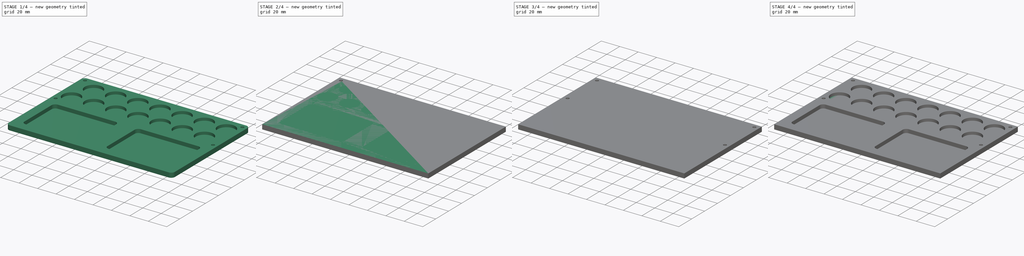
[diagram: build sequence overview — one tinted view per stage of 4, left to right]
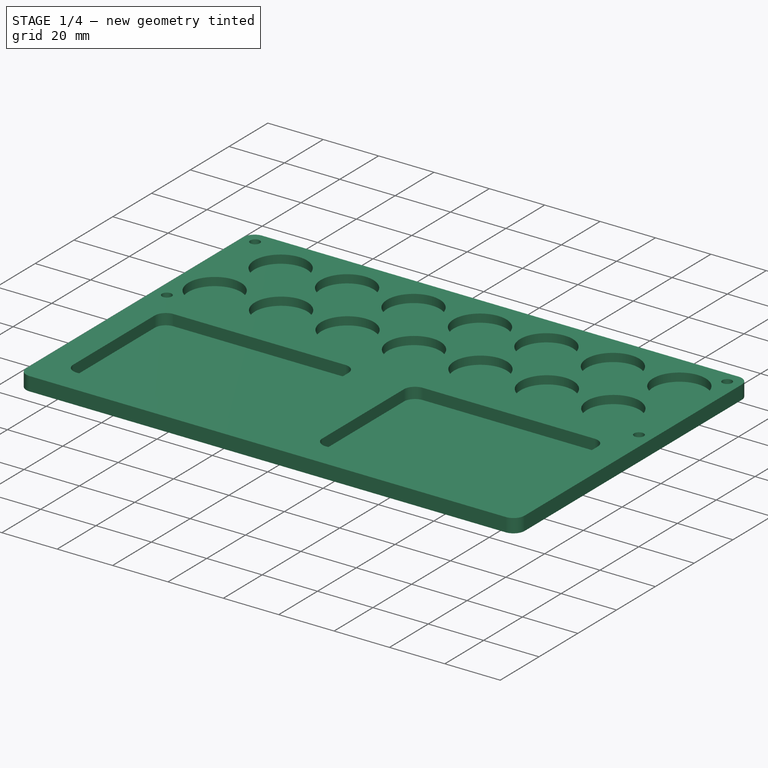
[diagram: stage 1 of 4 — iso view after this stage's code; geometry added in this stage tinted green]
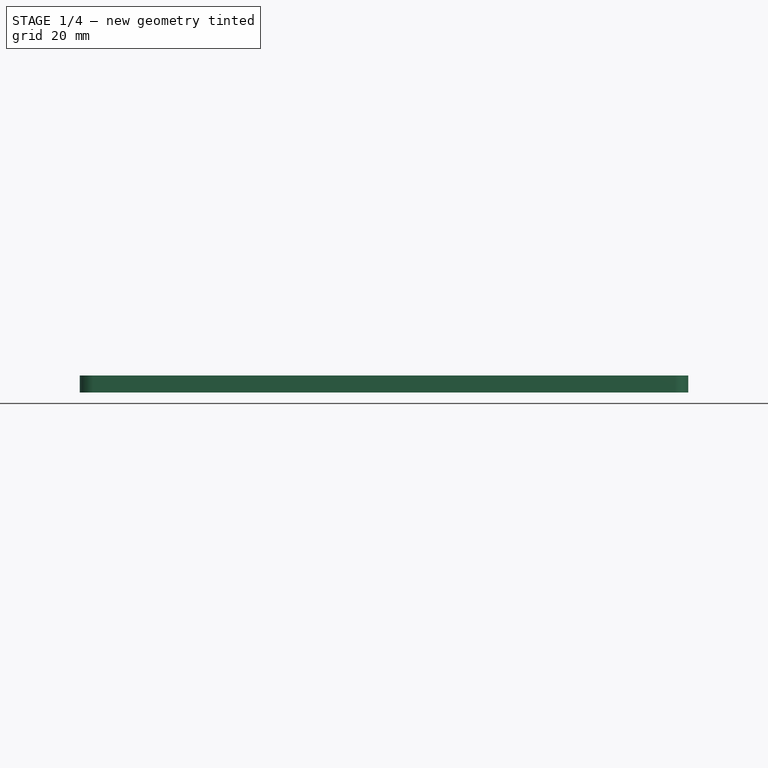
[diagram: stage 1 of 4 — front view after this stage's code; geometry added in this stage tinted green]
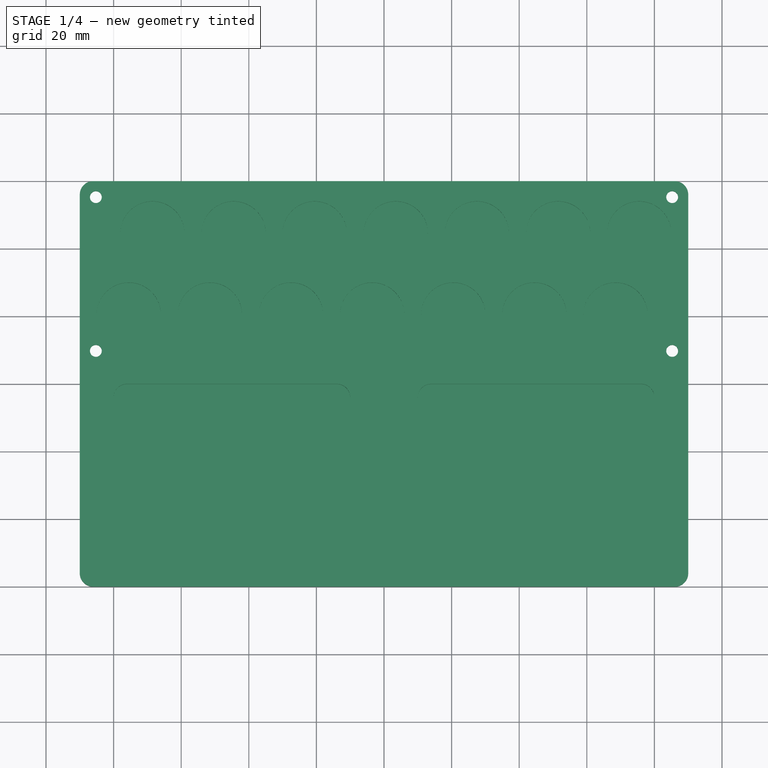
[diagram: stage 1 of 4 — top view after this stage's code; geometry added in this stage tinted green]
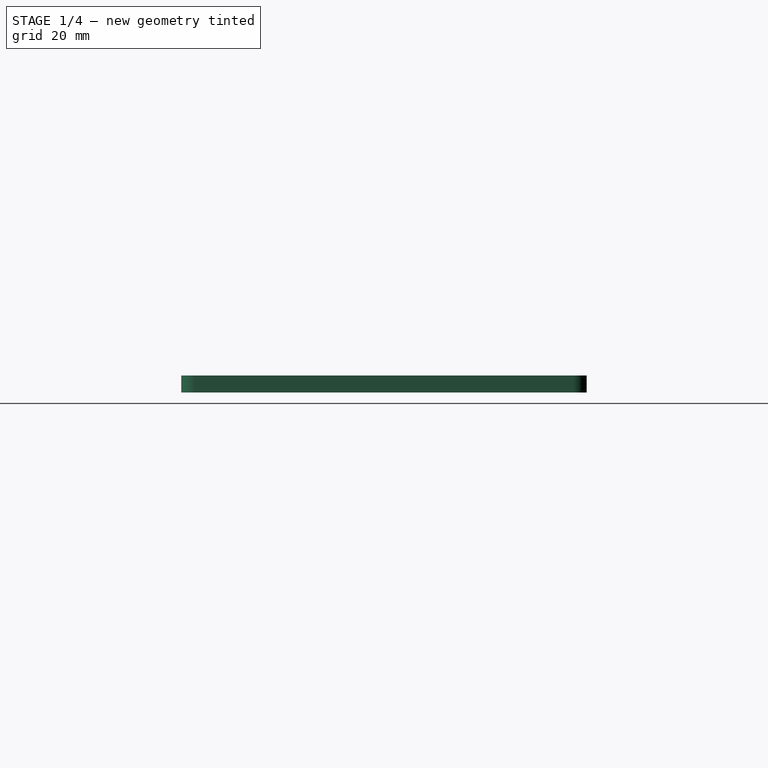
[diagram: stage 1 of 4 — right view after this stage's code; geometry added in this stage tinted green]
FCSTD DOCUMENT  (FreeCAD 0.17R13519 (Git))
Label: CNC-1
License: All rights reserved
LicenseURL: http://en.wikipedia.org/wiki/All_rights_reserved
objects: Sketcher::SketchObject×6, PartDesign::Pocket×4, PartDesign::Mirrored×3, Part::Feature×3, Part::Fillet×3, PartDesign::LinearPattern×2, PartDesign::MultiTransform×2, PartDesign::Pad×1, PartDesign::Body×1, Part::Fuse×1
note: 31 computed .brp shape members not serialized (recipe doc carries the construction recipe); baked Part::Feature solids carry a one-line shape summary decoded from their .brp

FEATURE [Part::Feature] Fusion001
  shape: bbox 180 x 120 x 5 mm, 56 faces (baked)
FEATURE [Part::Fillet] Fillet
  Base = -> Fusion001
  Edges = 4 edges r=4: [Edge1,Edge2,Edge101,Edge102]
FEATURE [Part::Fillet] Fillet001
  Base = -> Fillet
  Edges = 2 edges r=4: [Edge63,Edge65]
FEATURE [Part::Fillet] Fillet002
  Base = -> Fillet001
  Edges = 6 edges r=4: [Edge44,Edge46,Edge65,Edge67,Edge68,Edge70]
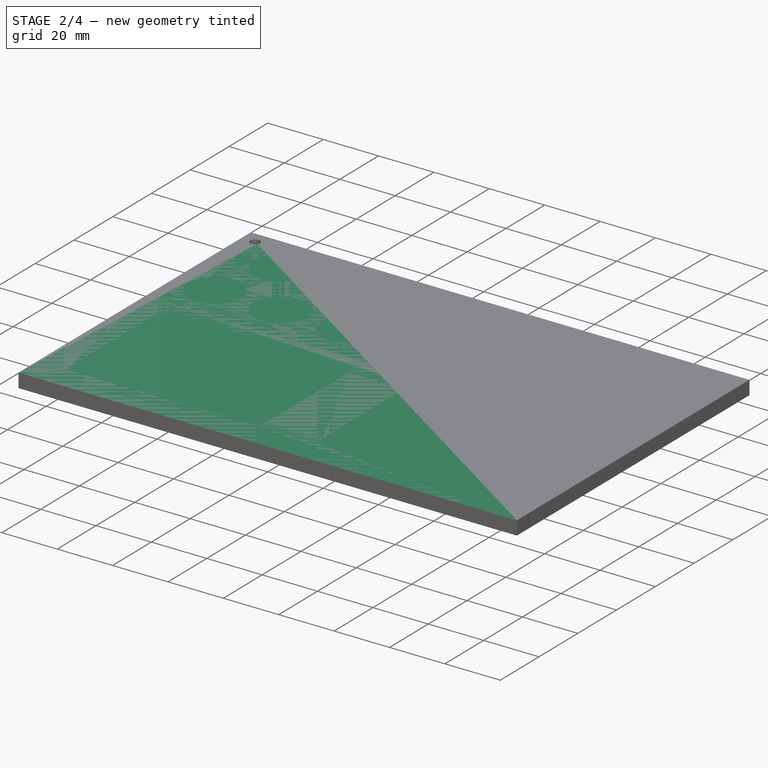
[diagram: stage 2 of 4 — iso view after this stage's code; geometry added in this stage tinted green]
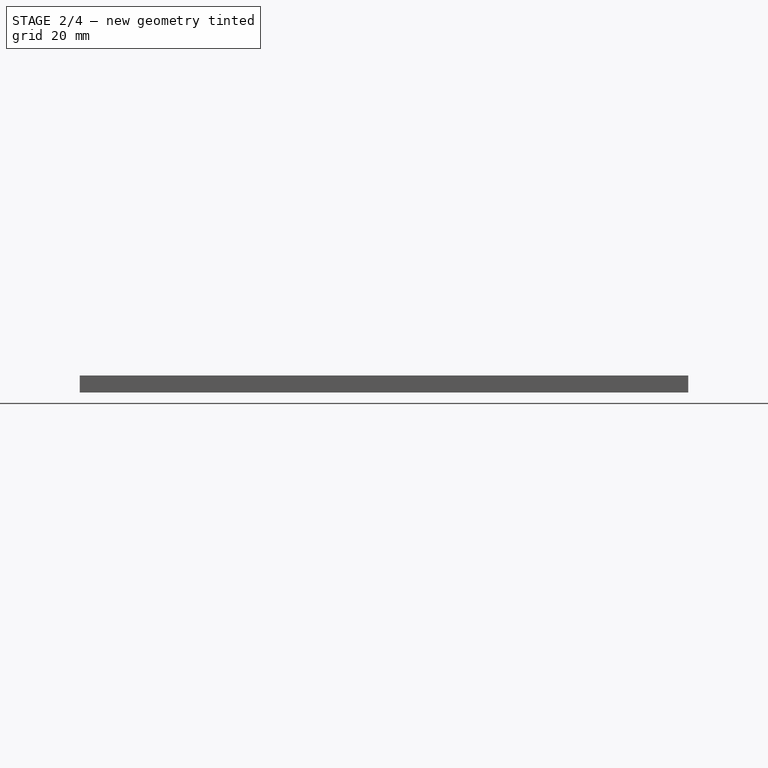
[diagram: stage 2 of 4 — front view after this stage's code; geometry added in this stage tinted green]
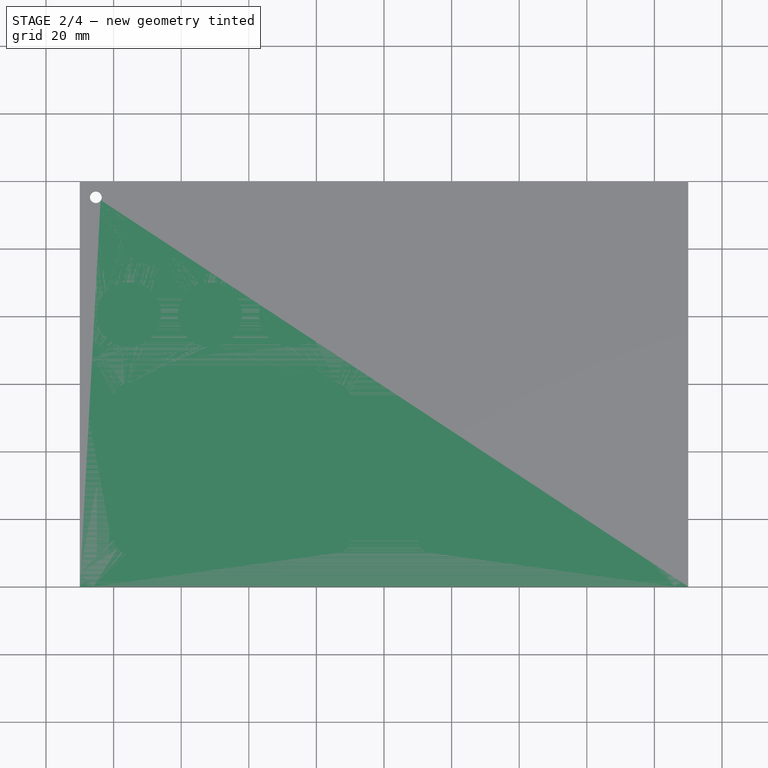
[diagram: stage 2 of 4 — top view after this stage's code; geometry added in this stage tinted green]
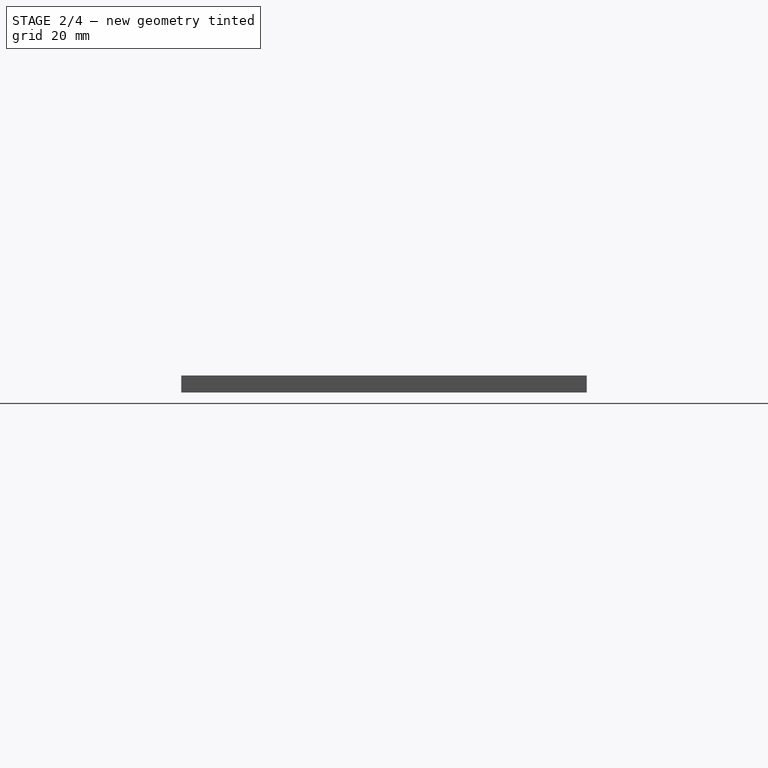
[diagram: stage 2 of 4 — right view after this stage's code; geometry added in this stage tinted green]
FEATURE [Sketcher::SketchObject] Sketch
  MapMode = 5
  Support = -> [XY_Plane]
  sketch-geometry (4):
    g0: LineSegment StartX=-90 StartY=60 StartZ=0 EndX=90 EndY=60 EndZ=0
    g1: LineSegment StartX=90 StartY=60 StartZ=0 EndX=90 EndY=-60 EndZ=0
    g2: LineSegment StartX=90 StartY=-60 StartZ=0 EndX=-90 EndY=-60 EndZ=0
    g3: LineSegment StartX=-90 StartY=-60 StartZ=0 EndX=-90 EndY=60 EndZ=0
  constraints (12):
    c: Coincident(g0,g1)
    c: Coincident(g1,g2)
    c: Coincident(g2,g3)
    c: Coincident(g3,g0)
    c: Horizontal(g0)
    c: Horizontal(g2)
    c: Vertical(g1)
    c: Vertical(g3)
    c: DistanceX(g0,g0) = 180
    c: DistanceY(g3,g3) = 120
    c: Distance(g-1,g0) = 60
    c: Distance(g-1,g3) = 90
FEATURE [PartDesign::Pad] Pad
  Length = 5
  Length2 = 100
  Profile = -> Sketch
  Type = 0
FEATURE [Sketcher::SketchObject] Sketch001
  ExternalGeometry = -> [Pad]
  MapMode = 5
  Placement = pos=(0,0,5) rot=(0,0,1;0rad)
  Support = -> [Pad]
  sketch-geometry (1):
    g0: Circle CenterX=-85.25 CenterY=55.25 CenterZ=0 NormalX=0 NormalY=0 NormalZ=1 AngleXU=0 Radius=1.75
  constraints (3):
    c: Radius(g0) = 1.75
    c: Distance(g0,g-3) = 4.75
    c: Distance(g0,g-4) = 4.75
FEATURE [PartDesign::Pocket] Pocket
  BaseFeature = -> Pad
  Length = 5
  Length2 = 100
  Profile = -> Sketch001
  Type = 1
FEATURE [PartDesign::Body] Body
  Group = -> [Sketch,Pad,Sketch001,Pocket,MultiTransform,Mirrored,LinearPattern,Sketch002,Sketch003,Pocket001,MultiTransform001,Mirrored001,LinearPattern001,Sketch004,Pocket002,Sketch005,Pocket003,Mirrored002]
  Origin = -> Origin
  Tip = -> Mirrored002
FEATURE [Part::Feature] Mirrored002001  label="Mirrored003"
  shape: bbox 180 x 120 x 5 mm, 22 faces (baked)
FEATURE [Part::Fuse] Fusion
  Base = -> LinearPattern001001
  Tool = -> Mirrored002001
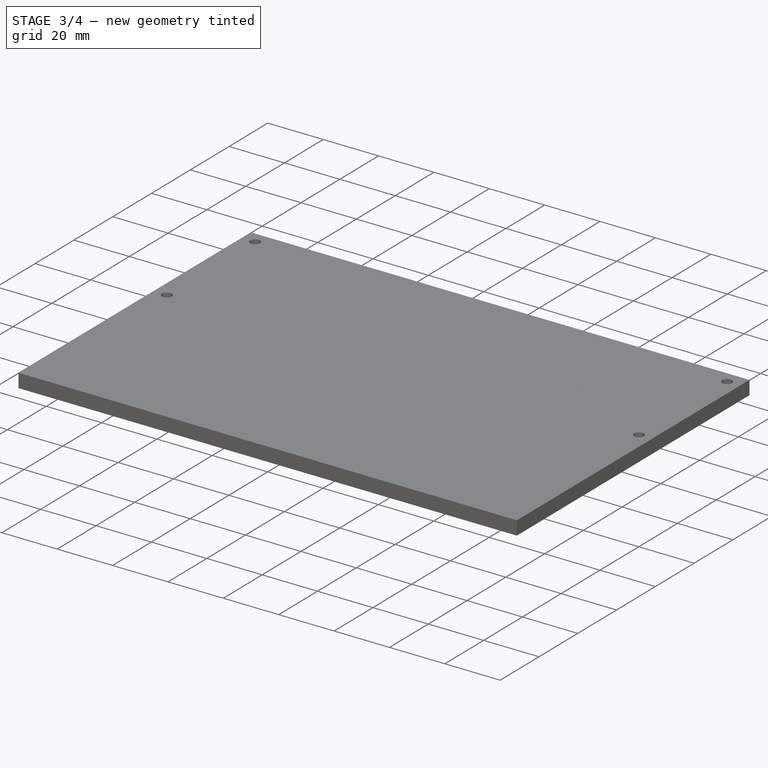
[diagram: stage 3 of 4 — iso view after this stage's code; geometry added in this stage tinted green]
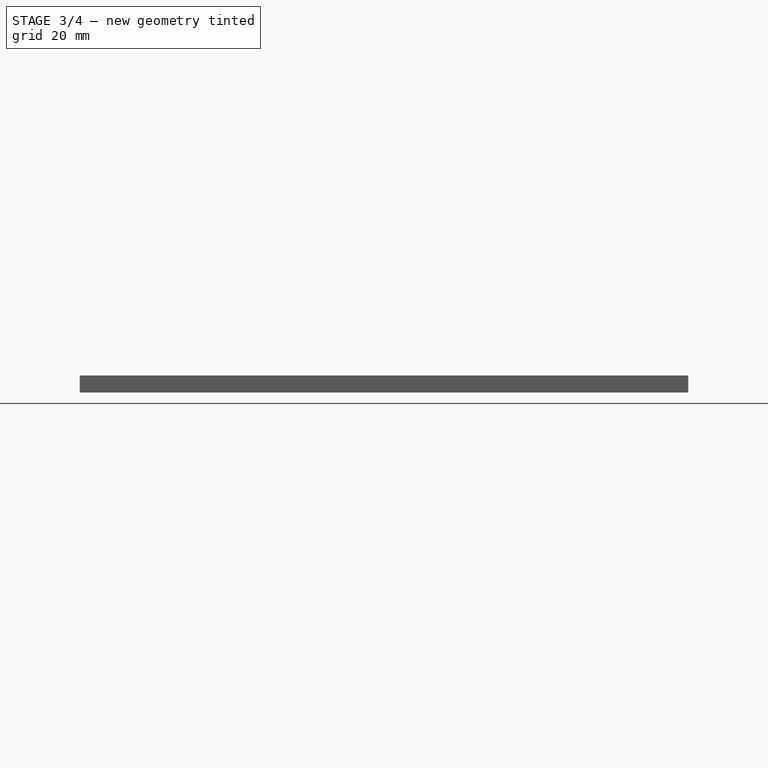
[diagram: stage 3 of 4 — front view after this stage's code; geometry added in this stage tinted green]
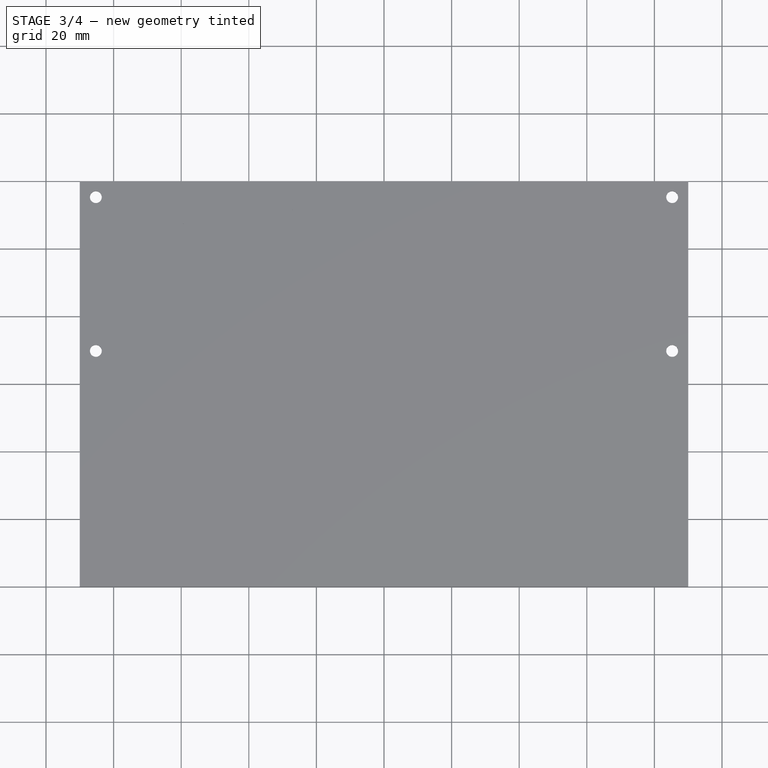
[diagram: stage 3 of 4 — top view after this stage's code; geometry added in this stage tinted green]
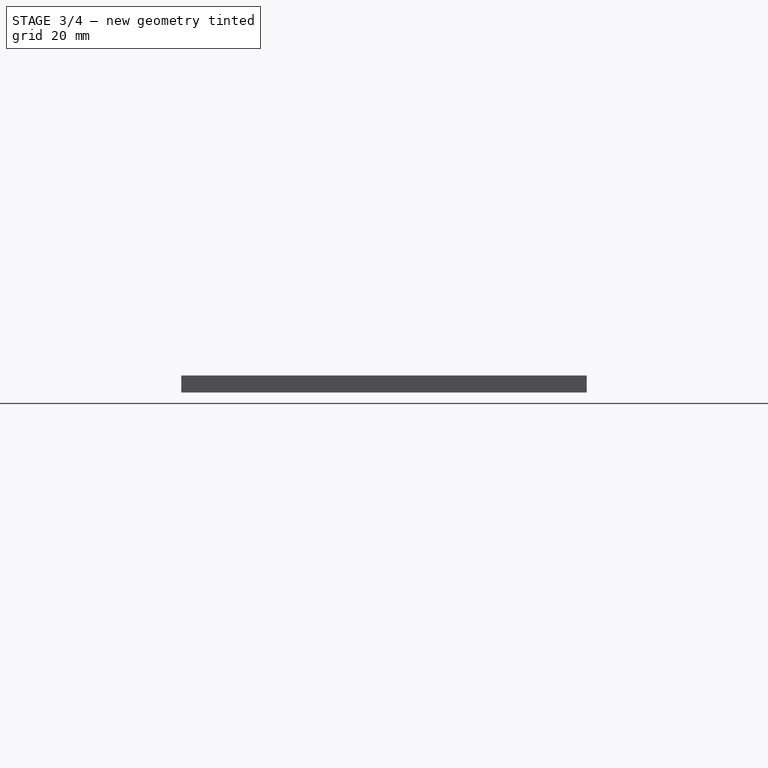
[diagram: stage 3 of 4 — right view after this stage's code; geometry added in this stage tinted green]
FEATURE [PartDesign::Mirrored] Mirrored
  MirrorPlane = -> YZ_Plane
FEATURE [PartDesign::LinearPattern] LinearPattern
  Direction = -> Y_Axis
  Length = 45.5
  Occurrences = 2
  Reversed = true
FEATURE [PartDesign::MultiTransform] MultiTransform
  BaseFeature = -> Pocket
  Originals = -> [Pocket]
  Transformations = -> [Mirrored,LinearPattern]
FEATURE [Sketcher::SketchObject] Sketch002
  MapMode = 5
  Placement = pos=(0,0,5) rot=(0,0,1;0rad)
  Support = -> [MultiTransform]
FEATURE [Sketcher::SketchObject] Sketch003
  ExternalGeometry = -> [MultiTransform]
  MapMode = 5
  Placement = pos=(0,0,0) rot=(1,0,0;3.14159rad)
  Support = -> [MultiTransform]
  sketch-geometry (1):
    g0: Circle CenterX=-85.25 CenterY=-55.25 CenterZ=0 NormalX=0 NormalY=0 NormalZ=1 AngleXU=0 Radius=3
  constraints (2):
    c: Radius(g0) = 3
    c: Coincident(g0,g-3)
FEATURE [PartDesign::Pocket] Pocket001
  BaseFeature = -> MultiTransform
  Length = 4
  Length2 = 100
  Profile = -> Sketch003
  Type = 0
FEATURE [PartDesign::Mirrored] Mirrored001
  MirrorPlane = -> Sketch003 [V_Axis]
FEATURE [PartDesign::LinearPattern] LinearPattern001
  Direction = -> Y_Axis
  Length = 45.5
  Occurrences = 2
  Reversed = true
FEATURE [PartDesign::MultiTransform] MultiTransform001
  BaseFeature = -> Pocket001
  Originals = -> [Pocket001]
  Transformations = -> [Mirrored001,LinearPattern001]
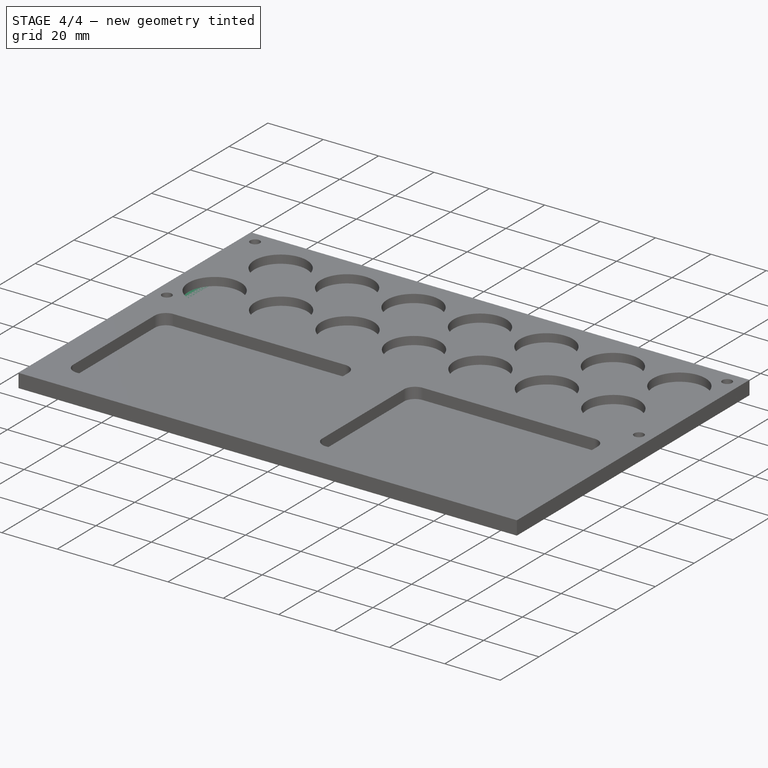
[diagram: stage 4 of 4 — iso view after this stage's code; geometry added in this stage tinted green]
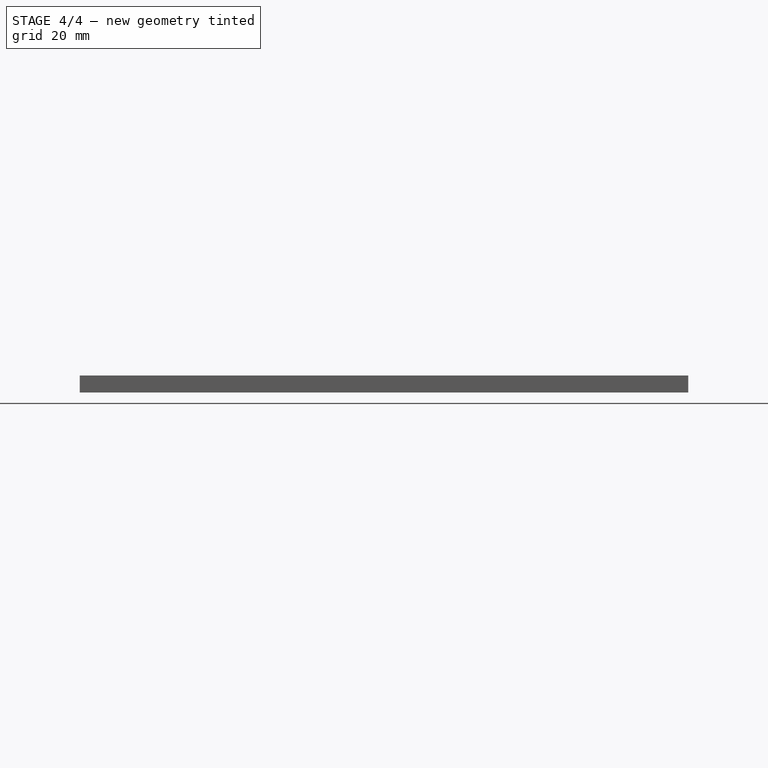
[diagram: stage 4 of 4 — front view after this stage's code; geometry added in this stage tinted green]
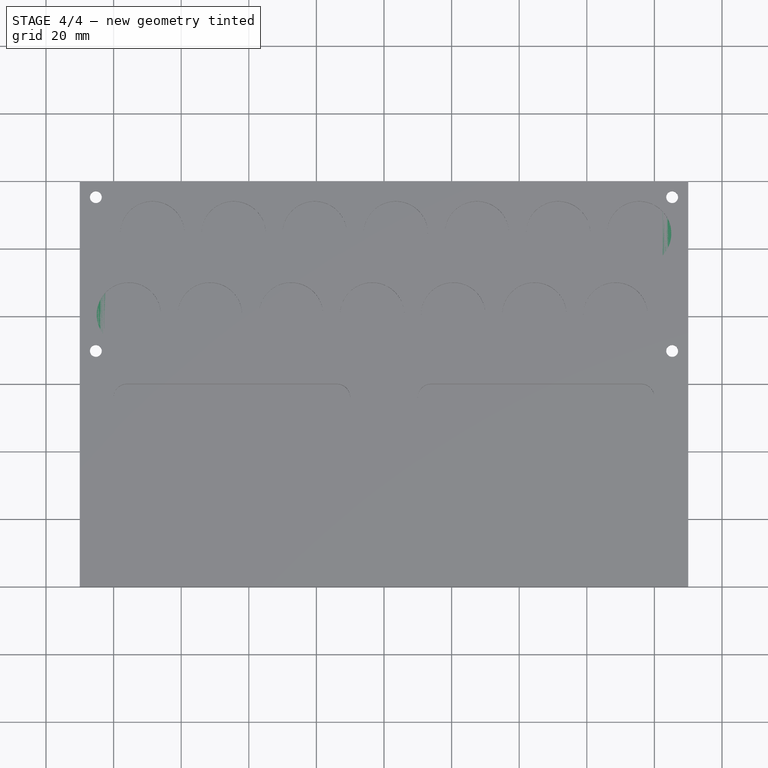
[diagram: stage 4 of 4 — top view after this stage's code; geometry added in this stage tinted green]
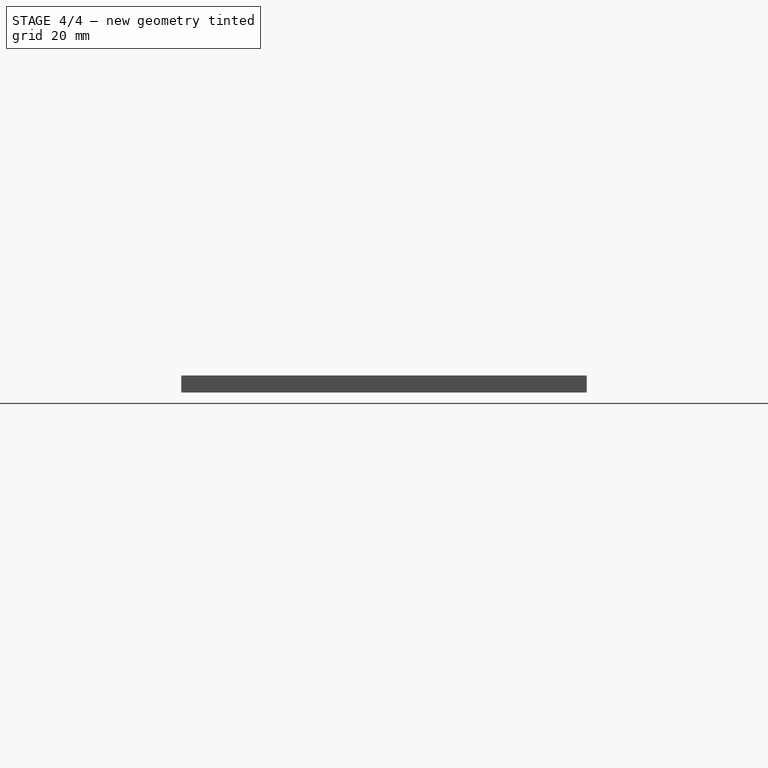
[diagram: stage 4 of 4 — right view after this stage's code; geometry added in this stage tinted green]
FEATURE [Sketcher::SketchObject] Sketch004
  ExternalGeometry = -> [MultiTransform001]
  MapMode = 5
  Placement = pos=(0,0,5) rot=(0,0,1;0rad)
  Support = -> [MultiTransform001]
  sketch-geometry (4):
    g0: LineSegment StartX=-90 StartY=60 StartZ=0 EndX=90 EndY=60 EndZ=0
    g1: LineSegment StartX=90 StartY=60 StartZ=0 EndX=90 EndY=5 EndZ=0
    g2: LineSegment StartX=90 StartY=5 StartZ=0 EndX=-90 EndY=5 EndZ=0
    g3: LineSegment StartX=-90 StartY=5 StartZ=0 EndX=-90 EndY=60 EndZ=0
  constraints (11):
    c: Coincident(g0,g1)
    c: Coincident(g1,g2)
    c: Coincident(g2,g3)
    c: Coincident(g3,g0)
    c: Horizontal(g0)
    c: Horizontal(g2)
    c: Vertical(g1)
    c: Vertical(g3)
    c: DistanceX(g0,g0) = 180
    c: DistanceY(g3,g3) = 55
    c: Coincident(g0,g-3)
FEATURE [PartDesign::Pocket] Pocket002
  BaseFeature = -> MultiTransform001
  Length = 3
  Length2 = 100
  Profile = -> Sketch004
  Type = 0
FEATURE [Part::Feature] LinearPattern001001  label="LinearPattern004"
  Placement = pos=(0,32.5,2) rot=(0,0,1;0rad)
  shape: bbox 180 x 55 x 3 mm, 24 faces (baked)
FEATURE [Sketcher::SketchObject] Sketch005
  ExternalGeometry = -> [Pocket002]
  MapMode = 5
  Placement = pos=(0,0,5) rot=(0,0,1;0rad)
  Support = -> [Pocket002]
  sketch-geometry (4):
    g0: LineSegment StartX=-80 StartY=0 StartZ=0 EndX=-10 EndY=0 EndZ=0
    g1: LineSegment StartX=-10 StartY=0 StartZ=0 EndX=-10 EndY=-50 EndZ=0
    g2: LineSegment StartX=-10 StartY=-50 StartZ=0 EndX=-80 EndY=-50 EndZ=0
    g3: LineSegment StartX=-80 StartY=-50 StartZ=0 EndX=-80 EndY=0 EndZ=0
  constraints (12):
    c: Coincident(g0,g1)
    c: Coincident(g1,g2)
    c: Coincident(g2,g3)
    c: Coincident(g3,g0)
    c: Horizontal(g0)
    c: Horizontal(g2)
    c: Vertical(g1)
    c: Vertical(g3)
    c: DistanceX(g2,g2) = 70
    c: DistanceY(g3,g3) = 50
    c: Distance(g2,g-4) = 10
    c: Distance(g2,g-3) = 10
FEATURE [PartDesign::Pocket] Pocket003
  BaseFeature = -> Pocket002
  Length = 4
  Length2 = 100
  Profile = -> Sketch005
  Type = 0
FEATURE [PartDesign::Mirrored] Mirrored002
  BaseFeature = -> Pocket003
  MirrorPlane = -> Sketch005 [V_Axis]
  Originals = -> [Pocket003]
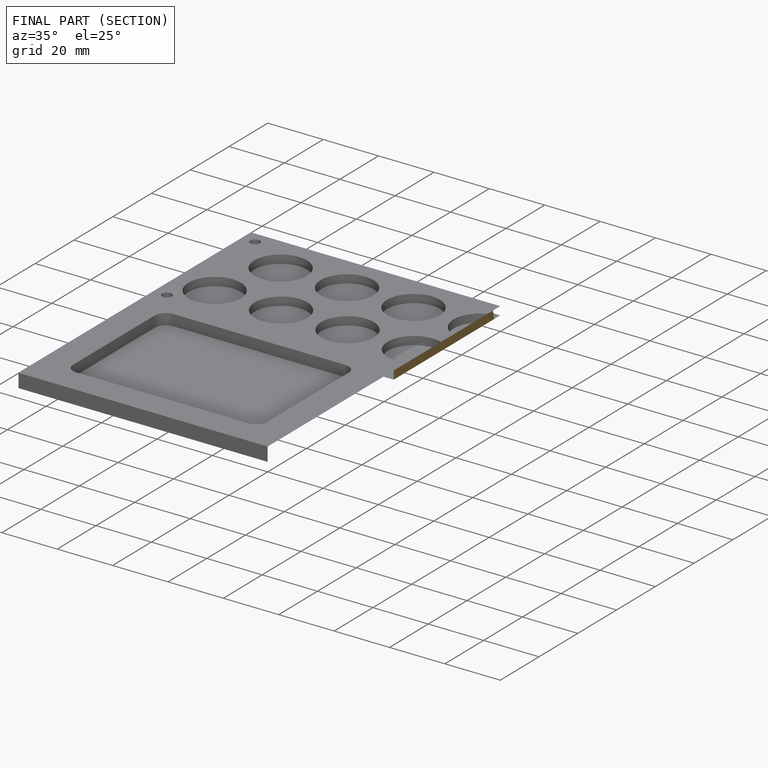
[diagram: finished part — half-section view (interior)]
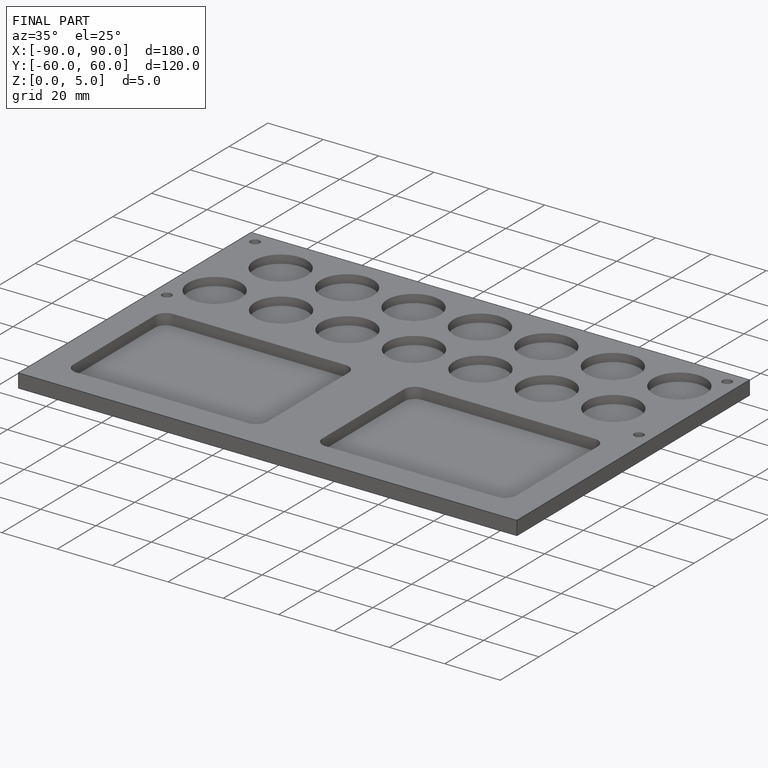
[diagram: finished part — iso view with bounding-box wireframe]
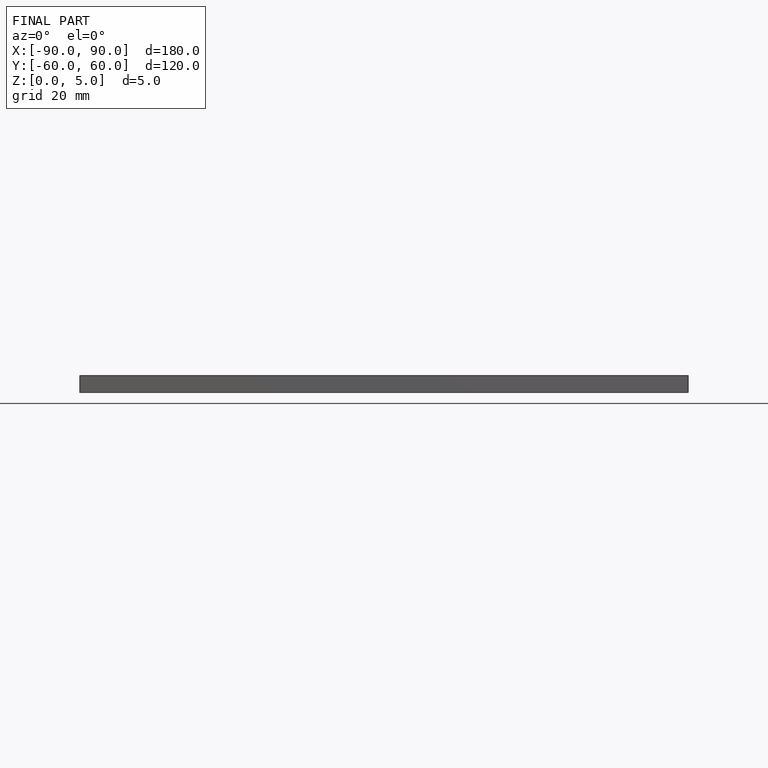
[diagram: finished part — front view with bounding-box wireframe]
